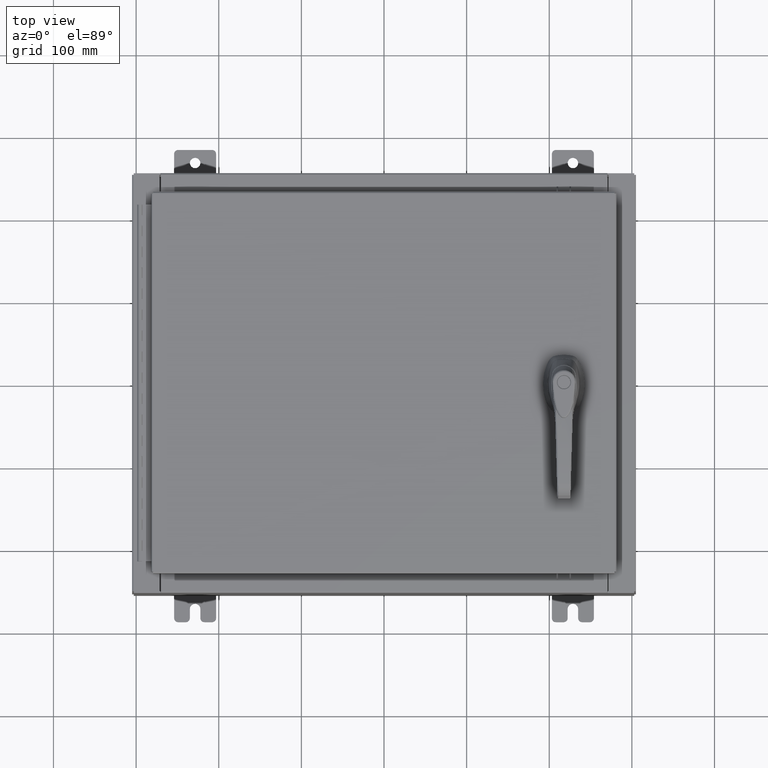
[diagram: clean part render]
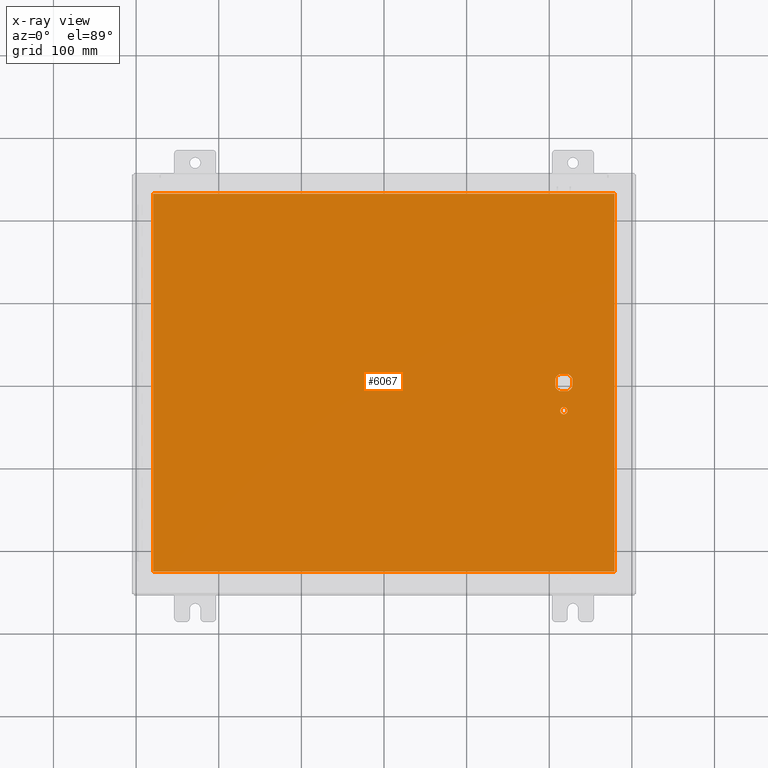
[diagram: x-ray — body ghosted, one internal face saturated and labeled with its STEP entity id]
A machine part, top view, then the same camera in x-ray: the body is ghosted and one INTERNAL B-rep face — a face not visible from any outside direction — is saturated and labeled: STEP entity #6067.
In plain terms, the highlighted planar face has unit normal (0, 0, -1).
Its self-contained STEP definition (entity closure, byte-faithful):
#785 = FACE_BOUND ( 'NONE', #38793, .T. ) ;
#1449 = DIRECTION ( 'NONE',  ( -1.000000000000000000, 0.0000000000000000000, 0.0000000000000000000 ) ) ;
#2064 = CIRCLE ( 'NONE', #101258, 0.4499999999999156900 ) ;
#3966 = PLANE ( 'NONE',  #86119 ) ;
#4978 = AXIS2_PLACEMENT_3D ( 'NONE', #48055, #107899, #56637 ) ;
#5686 = CARTESIAN_POINT ( 'NONE',  ( 8.577999999999999400, 0.0000000000000000000, -0.07470000000000003000 ) ) ;
#5960 = CARTESIAN_POINT ( 'NONE',  ( 8.778227370756310300, 0.4029999999999250300, -0.07470000000000003000 ) ) ;
#6067 = ADVANCED_FACE ( 'NONE', ( #785, #66084, #58113 ), #3966, .T. ) ;
#6458 = AXIS2_PLACEMENT_3D ( 'NONE', #82226, #31150, #90850 ) ;
#6538 = EDGE_CURVE ( 'NONE', #9547, #91726, #2064, .T. ) ;
#6648 = AXIS2_PLACEMENT_3D ( 'NONE', #13544, #73186, #22087 ) ;
#6934 = VECTOR ( 'NONE', #26248, 39.37007874015748100 ) ;
#8665 = CARTESIAN_POINT ( 'NONE',  ( 8.377772629243690300, 0.4029999999999252000, -0.07470000000000003000 ) ) ;
#9273 = LINE ( 'NONE', #105155, #94684 ) ;
#9547 = VERTEX_POINT ( 'NONE', #31280 ) ;
#12286 = EDGE_CURVE ( 'NONE', #74526, #98379, #29565, .T. ) ;
#12496 = DIRECTION ( 'NONE',  ( 0.0000000000000000000, 0.0000000000000000000, -1.000000000000000000 ) ) ;
#13544 = CARTESIAN_POINT ( 'NONE',  ( 8.577999999999999400, 0.0000000000000000000, -0.07470000000000003000 ) ) ;
#13733 = VECTOR ( 'NONE', #1449, 39.37007874015748100 ) ;
#14092 = VECTOR ( 'NONE', #94401, 39.37007874015748100 ) ;
#14240 = DIRECTION ( 'NONE',  ( -1.000000000000000000, 0.0000000000000000000, 0.0000000000000000000 ) ) ;
#16747 = CARTESIAN_POINT ( 'NONE',  ( 0.0000000000000000000, 0.4029999999999252000, -0.07470000000000003000 ) ) ;
#17477 = CARTESIAN_POINT ( 'NONE',  ( 8.175000000000073500, -0.2002273707563079800, -0.07470000000000003000 ) ) ;
#19187 = CARTESIAN_POINT ( 'NONE',  ( -10.99030000000000000, -9.006299999999999500, -0.07470000000000021100 ) ) ;
#19621 = DIRECTION ( 'NONE',  ( 2.728745808672812900E-015, -1.000000000000000000, 0.0000000000000000000 ) ) ;
#20554 = VECTOR ( 'NONE', #39327, 39.37007874015748100 ) ;
#21425 = VERTEX_POINT ( 'NONE', #22065 ) ;
#22065 = CARTESIAN_POINT ( 'NONE',  ( 8.377772629243690300, -0.4029999999999250300, -0.07470000000000003000 ) ) ;
#22087 = DIRECTION ( 'NONE',  ( -1.000000000000000000, 0.0000000000000000000, 0.0000000000000000000 ) ) ;
#22168 = VERTEX_POINT ( 'NONE', #75271 ) ;
#24530 = AXIS2_PLACEMENT_3D ( 'NONE', #5686, #65272, #14240 ) ;
#26248 = DIRECTION ( 'NONE',  ( 0.0000000000000000000, 1.000000000000000000, 0.0000000000000000000 ) ) ;
#27003 = ORIENTED_EDGE ( 'NONE', *, *, #53156, .T. ) ;
#29361 = EDGE_CURVE ( 'NONE', #45880, #96801, #59177, .T. ) ;
#29565 = LINE ( 'NONE', #43030, #6934 ) ;
#29771 = ORIENTED_EDGE ( 'NONE', *, *, #29361, .T. ) ;
#29880 = DIRECTION ( 'NONE',  ( -0.0000000000000000000, -0.0000000000000000000, 1.000000000000000000 ) ) ;
#31150 = DIRECTION ( 'NONE',  ( -0.0000000000000000000, -0.0000000000000000000, 1.000000000000000000 ) ) ;
#31280 = CARTESIAN_POINT ( 'NONE',  ( 8.778227370756310300, -0.4029999999999252000, -0.07470000000000003000 ) ) ;
#31628 = LINE ( 'NONE', #108766, #99757 ) ;
#33135 = ORIENTED_EDGE ( 'NONE', *, *, #53845, .T. ) ;
#33890 = EDGE_CURVE ( 'NONE', #62795, #91726, #9273, .T. ) ;
#35819 = ORIENTED_EDGE ( 'NONE', *, *, #108389, .T. ) ;
#36269 = ORIENTED_EDGE ( 'NONE', *, *, #44189, .T. ) ;
#38488 = EDGE_CURVE ( 'NONE', #46351, #47879, #39403, .T. ) ;
#38793 = EDGE_LOOP ( 'NONE', ( #27003, #33135 ) ) ;
#39327 = DIRECTION ( 'NONE',  ( -1.000000000000000000, -0.0000000000000000000, -0.0000000000000000000 ) ) ;
#39403 = LINE ( 'NONE', #85764, #14092 ) ;
#41106 = EDGE_LOOP ( 'NONE', ( #101000, #91247, #109084, #106496 ) ) ;
#43030 = CARTESIAN_POINT ( 'NONE',  ( 10.99030000000000000, -9.006299999999999500, -0.07470000000000019700 ) ) ;
#43336 = CARTESIAN_POINT ( 'NONE',  ( 8.577999999999999400, 0.0000000000000000000, -0.07470000000000003000 ) ) ;
#43986 = CIRCLE ( 'NONE', #6458, 0.1715000000000011500 ) ;
#44189 = EDGE_CURVE ( 'NONE', #62795, #88880, #67709, .T. ) ;
#44895 = CARTESIAN_POINT ( 'NONE',  ( 8.980999999999925300, 0.2002273707563080300, -0.07470000000000003000 ) ) ;
#45410 = EDGE_CURVE ( 'NONE', #47879, #74526, #54264, .T. ) ;
#45629 = CIRCLE ( 'NONE', #86541, 0.4499999999999156900 ) ;
#45880 = VERTEX_POINT ( 'NONE', #8665 ) ;
#46275 = CARTESIAN_POINT ( 'NONE',  ( 10.99030000000000000, -9.006299999999999500, -0.07470000000000000300 ) ) ;
#46351 = VERTEX_POINT ( 'NONE', #57036 ) ;
#47255 = ORIENTED_EDGE ( 'NONE', *, *, #33890, .F. ) ;
#47300 = VECTOR ( 'NONE', #64732, 39.37007874015748100 ) ;
#47879 = VERTEX_POINT ( 'NONE', #64797 ) ;
#47923 = CARTESIAN_POINT ( 'NONE',  ( 8.749500000000001200, -1.338000000000000100, -0.07470000000000003000 ) ) ;
#48055 = CARTESIAN_POINT ( 'NONE',  ( 8.577999999999999400, -1.338000000000000100, -0.07470000000000003000 ) ) ;
#48341 = CARTESIAN_POINT ( 'NONE',  ( 0.0000000000000000000, -0.4029999999999252000, -0.07470000000000003000 ) ) ;
#51921 = DIRECTION ( 'NONE',  ( -1.000000000000000000, 1.776356839400251300E-015, 0.0000000000000000000 ) ) ;
#52081 = EDGE_LOOP ( 'NONE', ( #73278, #47255, #36269, #91050, #29771, #35819, #87562, #69579 ) ) ;
#53156 = EDGE_CURVE ( 'NONE', #53859, #22168, #76088, .T. ) ;
#53845 = EDGE_CURVE ( 'NONE', #22168, #53859, #43986, .T. ) ;
#53859 = VERTEX_POINT ( 'NONE', #47923 ) ;
#54264 = LINE ( 'NONE', #19187, #97010 ) ;
#56637 = DIRECTION ( 'NONE',  ( -1.000000000000000000, 0.0000000000000000000, 0.0000000000000000000 ) ) ;
#57036 = CARTESIAN_POINT ( 'NONE',  ( -10.99030000000000000, 9.006299999999997800, -0.07470000000000000300 ) ) ;
#58113 = FACE_BOUND ( 'NONE', #52081, .T. ) ;
#59177 = CIRCLE ( 'NONE', #6648, 0.4499999999999156900 ) ;
#60543 = CARTESIAN_POINT ( 'NONE',  ( 8.175000000000073500, 0.2002273707563080300, -0.07470000000000003000 ) ) ;
#62795 = VERTEX_POINT ( 'NONE', #44895 ) ;
#64732 = DIRECTION ( 'NONE',  ( 1.000000000000000000, 0.0000000000000000000, 0.0000000000000000000 ) ) ;
#64797 = CARTESIAN_POINT ( 'NONE',  ( -10.99030000000000000, -9.006299999999999500, -0.07470000000000000300 ) ) ;
#65272 = DIRECTION ( 'NONE',  ( -0.0000000000000000000, -0.0000000000000000000, 1.000000000000000000 ) ) ;
#66084 = FACE_OUTER_BOUND ( 'NONE', #41106, .T. ) ;
#67709 = CIRCLE ( 'NONE', #24530, 0.4499999999999156900 ) ;
#69579 = ORIENTED_EDGE ( 'NONE', *, *, #80204, .T. ) ;
#70013 = LINE ( 'NONE', #48341, #47300 ) ;
#70893 = DIRECTION ( 'NONE',  ( 0.0000000000000000000, -1.000000000000000000, 0.0000000000000000000 ) ) ;
#72149 = DIRECTION ( 'NONE',  ( -1.000000000000000000, 0.0000000000000000000, -0.0000000000000000000 ) ) ;
#73186 = DIRECTION ( 'NONE',  ( -0.0000000000000000000, -0.0000000000000000000, 1.000000000000000000 ) ) ;
#73278 = ORIENTED_EDGE ( 'NONE', *, *, #6538, .T. ) ;
#73294 = CARTESIAN_POINT ( 'NONE',  ( 10.99030000000000000, 9.006299999999999500, -0.07470000000000021100 ) ) ;
#74526 = VERTEX_POINT ( 'NONE', #46275 ) ;
#75271 = CARTESIAN_POINT ( 'NONE',  ( 8.406499999999999400, -1.338000000000000100, -0.07470000000000003000 ) ) ;
#76088 = CIRCLE ( 'NONE', #4978, 0.1715000000000011500 ) ;
#80204 = EDGE_CURVE ( 'NONE', #21425, #9547, #70013, .T. ) ;
#80333 = CARTESIAN_POINT ( 'NONE',  ( 0.0000000000000000000, 0.0000000000000000000, -0.07470000000000000300 ) ) ;
#80953 = CARTESIAN_POINT ( 'NONE',  ( 8.577999999999999400, 0.0000000000000000000, -0.07470000000000003000 ) ) ;
#81731 = LINE ( 'NONE', #16747, #13733 ) ;
#82226 = CARTESIAN_POINT ( 'NONE',  ( 8.577999999999999400, -1.338000000000000100, -0.07470000000000003000 ) ) ;
#83583 = EDGE_CURVE ( 'NONE', #107215, #21425, #45629, .T. ) ;
#85764 = CARTESIAN_POINT ( 'NONE',  ( -10.99030000000000000, 9.006299999999999500, -0.07470000000000019700 ) ) ;
#86119 = AXIS2_PLACEMENT_3D ( 'NONE', #80333, #12496, #72149 ) ;
#86541 = AXIS2_PLACEMENT_3D ( 'NONE', #80953, #29880, #89551 ) ;
#87562 = ORIENTED_EDGE ( 'NONE', *, *, #83583, .T. ) ;
#88880 = VERTEX_POINT ( 'NONE', #5960 ) ;
#89551 = DIRECTION ( 'NONE',  ( -1.000000000000000000, 8.881784197001256300E-016, 0.0000000000000000000 ) ) ;
#89918 = CARTESIAN_POINT ( 'NONE',  ( 8.980999999999925300, -0.2002273707563075900, -0.07470000000000003000 ) ) ;
#90850 = DIRECTION ( 'NONE',  ( -1.000000000000000000, 0.0000000000000000000, 0.0000000000000000000 ) ) ;
#91050 = ORIENTED_EDGE ( 'NONE', *, *, #96051, .T. ) ;
#91247 = ORIENTED_EDGE ( 'NONE', *, *, #45410, .F. ) ;
#91325 = LINE ( 'NONE', #73294, #20554 ) ;
#91726 = VERTEX_POINT ( 'NONE', #89918 ) ;
#94401 = DIRECTION ( 'NONE',  ( 0.0000000000000000000, -1.000000000000000000, 0.0000000000000000000 ) ) ;
#94590 = EDGE_CURVE ( 'NONE', #98379, #46351, #91325, .T. ) ;
#94684 = VECTOR ( 'NONE', #19621, 39.37007874015748100 ) ;
#96047 = DIRECTION ( 'NONE',  ( 1.000000000000000000, -0.0000000000000000000, -0.0000000000000000000 ) ) ;
#96051 = EDGE_CURVE ( 'NONE', #88880, #45880, #81731, .T. ) ;
#96801 = VERTEX_POINT ( 'NONE', #60543 ) ;
#97010 = VECTOR ( 'NONE', #96047, 39.37007874015748100 ) ;
#98379 = VERTEX_POINT ( 'NONE', #105110 ) ;
#99757 = VECTOR ( 'NONE', #70893, 39.37007874015748100 ) ;
#101000 = ORIENTED_EDGE ( 'NONE', *, *, #12286, .F. ) ;
#101258 = AXIS2_PLACEMENT_3D ( 'NONE', #43336, #103125, #51921 ) ;
#103125 = DIRECTION ( 'NONE',  ( -0.0000000000000000000, -0.0000000000000000000, 1.000000000000000000 ) ) ;
#105110 = CARTESIAN_POINT ( 'NONE',  ( 10.99030000000000000, 9.006299999999999500, -0.07470000000000000300 ) ) ;
#105155 = CARTESIAN_POINT ( 'NONE',  ( 8.980999999999925300, 2.450686610769032800E-014, -0.07470000000000003000 ) ) ;
#106496 = ORIENTED_EDGE ( 'NONE', *, *, #94590, .F. ) ;
#107215 = VERTEX_POINT ( 'NONE', #17477 ) ;
#107899 = DIRECTION ( 'NONE',  ( -0.0000000000000000000, -0.0000000000000000000, 1.000000000000000000 ) ) ;
#108389 = EDGE_CURVE ( 'NONE', #96801, #107215, #31628, .T. ) ;
#108766 = CARTESIAN_POINT ( 'NONE',  ( 8.175000000000073500, 0.0000000000000000000, -0.07470000000000003000 ) ) ;
#109084 = ORIENTED_EDGE ( 'NONE', *, *, #38488, .F. ) ;